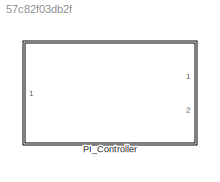
MODEL slx_57c82f03db2f
KIND library
CONFIG AbsTol = auto
CONFIG EnableMultiTasking = off
CONFIG FixedStep = auto
CONFIG MaxStep = auto
CONFIG MinStep = auto
CONFIG RelTol = 1e-3
CONFIG SampleTimeConstraint = Unconstrained
CONFIG Solver = ode45
CONFIG SolverName = ode45
CONFIG StartTime = 0.0
CONFIG StopTime = 10.0
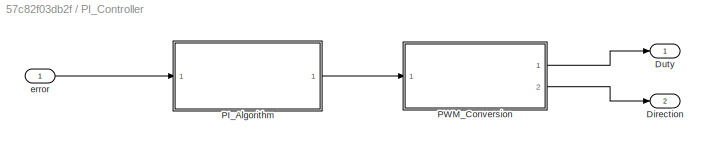
BLOCK [SubSystem] PI_Controller
  Ports = [1, 2]
  RequestExecContextInheritance = off
BLOCK [Outport] PI_Controller/Direction
  IconDisplay = Port number
  Port = 2
BLOCK [Outport] PI_Controller/Duty
  IconDisplay = Port number
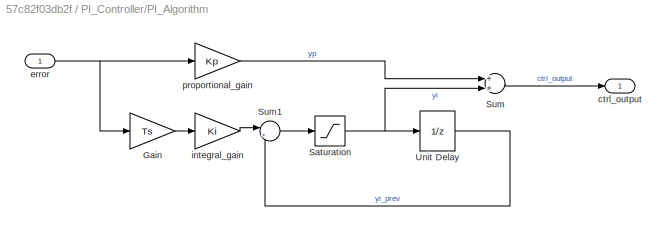
BLOCK [SubSystem] PI_Controller/PI_Algorithm
  Ports = [1, 1]
  RequestExecContextInheritance = off
BLOCK [Gain] PI_Controller/PI_Algorithm/Gain
  Gain = Ts
BLOCK [Saturate] PI_Controller/PI_Algorithm/Saturation
  AttributesFormatString = Max: %<UpperLimit>\nMin: %<LowerLimit>
  InputPortMap = u0
  LowerLimit = -1
  Ports = [1, 1]
  UpperLimit = 1
BLOCK [Sum] PI_Controller/PI_Algorithm/Sum
  Ports = [2, 1]
BLOCK [Sum] PI_Controller/PI_Algorithm/Sum1
  IconShape = round
  Inputs = |++
  Ports = [2, 1]
BLOCK [UnitDelay] PI_Controller/PI_Algorithm/Unit Delay
  AttributesFormatString = yi0 = %<X0>\nSample time = %<SampleTime>
  SampleTime = Ts
BLOCK [Outport] PI_Controller/PI_Algorithm/ctrl_output
  IconDisplay = Port number
BLOCK [Inport] PI_Controller/PI_Algorithm/error
  AttributesFormatString = Sample time = %<SampleTime>
  IconDisplay = Port number
  SampleTime = Ts
BLOCK [Gain] PI_Controller/PI_Algorithm/integral_gain
  Gain = Ki
BLOCK [Gain] PI_Controller/PI_Algorithm/proportional_gain
  Gain = Kp
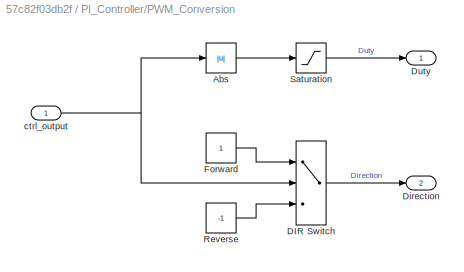
BLOCK [SubSystem] PI_Controller/PWM_Conversion
  Ports = [1, 2]
  RequestExecContextInheritance = off
BLOCK [Abs] PI_Controller/PWM_Conversion/Abs
  SaturateOnIntegerOverflow = off
BLOCK [Switch] PI_Controller/PWM_Conversion/DIR Switch
  AttributesFormatString = Criteria: %<Criteria>\nThreshold: %<Threshold>
  InputSameDT = off
  SaturateOnIntegerOverflow = off
BLOCK [Outport] PI_Controller/PWM_Conversion/Direction
  IconDisplay = Port number
  Port = 2
BLOCK [Outport] PI_Controller/PWM_Conversion/Duty 
  IconDisplay = Port number
BLOCK [Constant] PI_Controller/PWM_Conversion/Forward
  OutDataTypeStr = double
BLOCK [Constant] PI_Controller/PWM_Conversion/Reverse
  OutDataTypeStr = double
  Value = -1
BLOCK [Saturate] PI_Controller/PWM_Conversion/Saturation
  AttributesFormatString = %<LowerLimit> < duty < %<UpperLimit>
  InputPortMap = u0
  LowerLimit = 0
  Ports = [1, 1]
  UpperLimit = 1
BLOCK [Inport] PI_Controller/PWM_Conversion/ctrl_output
  IconDisplay = Port number
BLOCK [Inport] PI_Controller/error
  IconDisplay = Port number
  SampleTime = Ts
LINE PI_Controller/PI_Algorithm/Gain:1 -> PI_Controller/PI_Algorithm/integral_gain:1
NET PI_Controller/PI_Algorithm/Saturation:1 -> PI_Controller/PI_Algorithm/Sum:2, PI_Controller/PI_Algorithm/Unit Delay:1
LINE PI_Controller/PI_Algorithm/Sum1:1 -> PI_Controller/PI_Algorithm/Saturation:1
LINE PI_Controller/PI_Algorithm/Sum:1 -> PI_Controller/PI_Algorithm/ctrl_output:1
LINE PI_Controller/PI_Algorithm/Unit Delay:1 -> PI_Controller/PI_Algorithm/Sum1:2
NET PI_Controller/PI_Algorithm/error:1 -> PI_Controller/PI_Algorithm/Gain:1, PI_Controller/PI_Algorithm/proportional_gain:1
LINE PI_Controller/PI_Algorithm/integral_gain:1 -> PI_Controller/PI_Algorithm/Sum1:1
LINE PI_Controller/PI_Algorithm/proportional_gain:1 -> PI_Controller/PI_Algorithm/Sum:1
LINE PI_Controller/PI_Algorithm:1 -> PI_Controller/PWM_Conversion:1
LINE PI_Controller/PWM_Conversion/Abs:1 -> PI_Controller/PWM_Conversion/Saturation:1
LINE PI_Controller/PWM_Conversion/DIR Switch:1 -> PI_Controller/PWM_Conversion/Direction:1
LINE PI_Controller/PWM_Conversion/Forward:1 -> PI_Controller/PWM_Conversion/DIR Switch:1
LINE PI_Controller/PWM_Conversion/Reverse:1 -> PI_Controller/PWM_Conversion/DIR Switch:3
LINE PI_Controller/PWM_Conversion/Saturation:1 -> PI_Controller/PWM_Conversion/Duty :1
NET PI_Controller/PWM_Conversion/ctrl_output:1 -> PI_Controller/PWM_Conversion/Abs:1, PI_Controller/PWM_Conversion/DIR Switch:2
LINE PI_Controller/PWM_Conversion:1 -> PI_Controller/Duty:1
LINE PI_Controller/PWM_Conversion:2 -> PI_Controller/Direction:1
LINE PI_Controller/error:1 -> PI_Controller/PI_Algorithm:1
note: NET lines group one-source signal fan-out (src -> all destinations, sorted); 1:1 wires keep LINE
